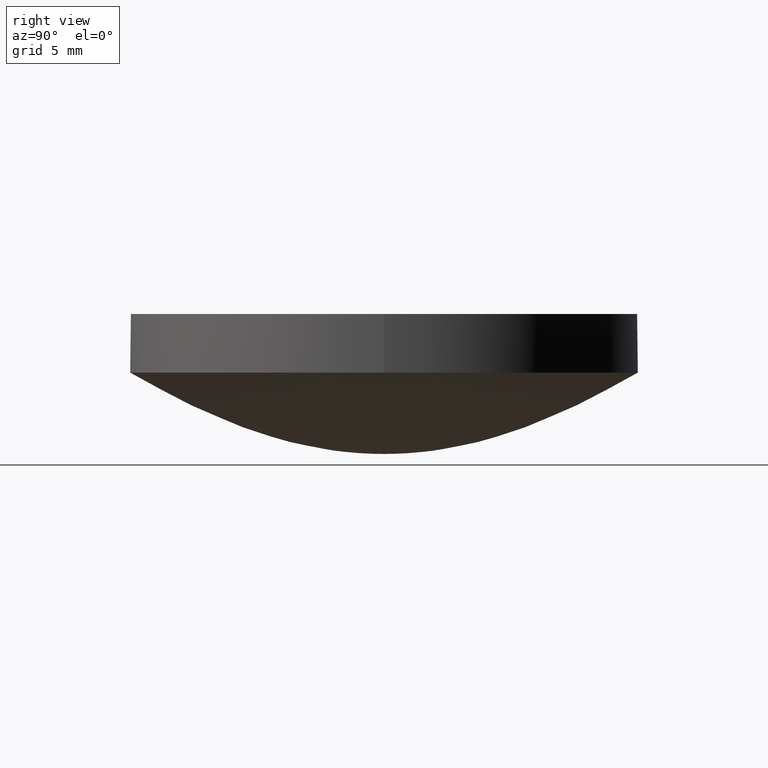
[diagram: clean part render]
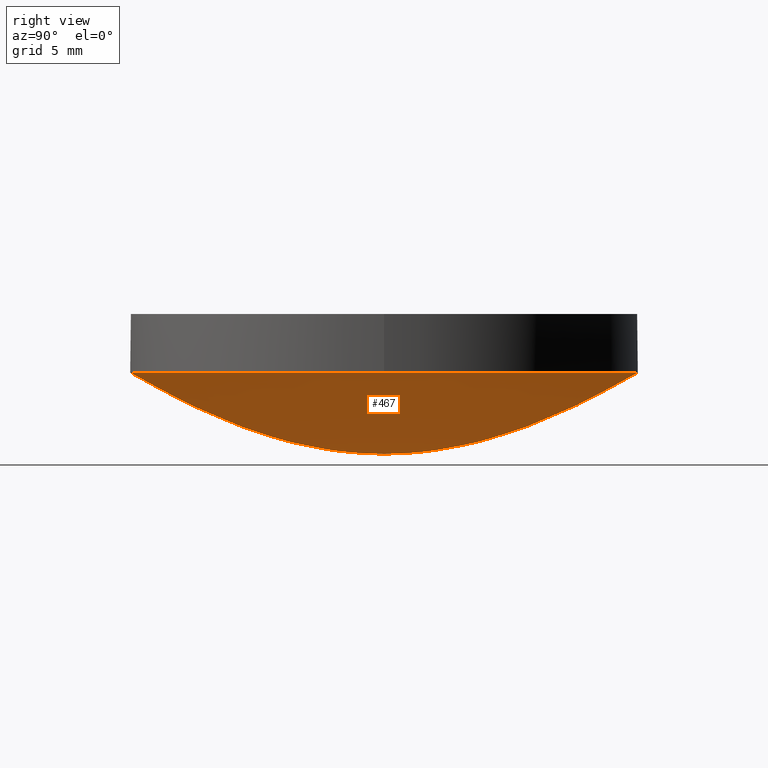
[diagram: same view with one face highlighted and labeled with its STEP entity id]
A machine part, right view. The second image highlights one B-rep face of the part: STEP entity #467.
In plain terms, the highlighted face is a freeform B-spline surface patch.
Its self-contained STEP definition (entity closure, byte-faithful):
#3 = CARTESIAN_POINT ( 'NONE',  ( 0.000000000000000000, 3.533405957217320648, 0.3344205416368840611 ) ) ;
#4 = CARTESIAN_POINT ( 'NONE',  ( 0.000000000000000000, 11.12882161848590101, 3.181104374964820014 ) ) ;
#6 = CARTESIAN_POINT ( 'NONE',  ( -12.00479254064729950, 12.00479254064729950, 3.667064022752589914 ) ) ;
#8 = CARTESIAN_POINT ( 'NONE',  ( -9.181737509768350236, 5.622192725974499850E-16, 2.214785189956430145 ) ) ;
#17 = CARTESIAN_POINT ( 'NONE',  ( -1.191719837553290114E-16, -0.9731130954516921117, 0.01543048580902020225 ) ) ;
#21 = VERTEX_POINT ( 'NONE', #272 ) ;
#25 = CARTESIAN_POINT ( 'NONE',  ( 6.711633172175790030, -1.232907012203440065E-15, 1.203886913266370096 ) ) ;
#28 = CARTESIAN_POINT ( 'NONE',  ( -1.555301434917141588E-15, -12.70000000000000462, 4.070440747888570243 ) ) ;
#29 = CARTESIAN_POINT ( 'NONE',  ( -8.219380081356279919E-16, -6.711633172175790030, 1.203886913266370096 ) ) ;
#30 = CARTESIAN_POINT ( 'NONE',  ( 9.886807867845659459, 9.886807867845650577, 2.551412349714330396 ) ) ;
#33 = CARTESIAN_POINT ( 'NONE',  ( 0.000000000000000000, 6.006055148341420846, 0.9667882177834620228 ) ) ;
#34 = CARTESIAN_POINT ( 'NONE',  ( 0.000000000000000000, 0.000000000000000000, 0.000000000000000000 ) ) ;
#36 = CARTESIAN_POINT ( 'NONE',  ( 0.000000000000000000, 3.533405957217320648, 0.3344205416368840611 ) ) ;
#37 = CARTESIAN_POINT ( 'NONE',  ( 0.000000000000000000, 1.855821823687519911, 0.08601257208149051814 ) ) ;
#38 = CARTESIAN_POINT ( 'NONE',  ( -1.191719837553290114E-16, -0.9731130954516921117, 0.01543048580902020225 ) ) ;
#39 = CARTESIAN_POINT ( 'NONE',  ( -6.711633172175790030, 4.109690040678139960E-16, 1.203886913266370096 ) ) ;
#40 = CARTESIAN_POINT ( 'NONE',  ( 11.12882161848590101, -2.044331366004090146E-15, 3.181104374964820014 ) ) ;
#43 = CARTESIAN_POINT ( 'NONE',  ( -11.12882161848589924, -11.12882161848589924, 3.181104374964820014 ) ) ;
#44 = CARTESIAN_POINT ( 'NONE',  ( -2.272726256166720090E-16, -1.855821823687519911, 0.08601257208149051814 ) ) ;
#46 = CARTESIAN_POINT ( 'NONE',  ( -1.124438545194899970E-15, -9.181737509768350236, 2.214785189956430145 ) ) ;
#51 = CARTESIAN_POINT ( 'NONE',  ( -0.2648328616955860082, 1.621633581922660085E-17, 0.000000000000000000 ) ) ;
#52 = CARTESIAN_POINT ( 'NONE',  ( 0.000000000000000000, 0.000000000000000000, 0.000000000000000000 ) ) ;
#53 = ORIENTED_EDGE ( 'NONE', *, *, #519, .T. ) ;
#60 = CARTESIAN_POINT ( 'NONE',  ( -0.2648328616955859527, -0.2648328616955859527, 0.000000000000000000 ) ) ;
#64 = B_SPLINE_CURVE_WITH_KNOTS ( 'NONE', 3,
 ( #536, #314, #486, #230, #151, #444, #68, #108, #311, #414, #241, #361, #451, #441, #38, #490, #112 ),
 .UNSPECIFIED., .F., .F.,
 ( 4, 1, 1, 1, 1, 1, 1, 1, 1, 1, 1, 1, 1, 1, 4 ),
 ( 0.000000000000000000, 0.1786505433435620072, 0.2225930362310299948, 0.3094249444054230080, 0.3523143596923489773, 0.4370447528922249969, 0.4788857308051759909, 0.5616114302726280538, 0.6024961518271300109, 0.6834766971770069865, 0.7235725209723830043, 0.8032027717589680371, 0.8427371987501770523, 0.9411358128706930337, 1.000000000000000000 ),
 .UNSPECIFIED. ) ;
#68 = CARTESIAN_POINT ( 'NONE',  ( -9.300336711742419180E-16, -7.594301245238770370, 1.533470957631930087 ) ) ;
#69 = CARTESIAN_POINT ( 'NONE',  ( 0.000000000000000000, 4.417048690703129665, 0.5241299113884619887 ) ) ;
#72 = CARTESIAN_POINT ( 'NONE',  ( -7.594301245238770370, 4.650168355871209590E-16, 1.533470957631930087 ) ) ;
#77 = CARTESIAN_POINT ( 'NONE',  ( 4.417048690703129665, -8.113986811121390347E-16, 0.5241299113884619887 ) ) ;
#78 = CARTESIAN_POINT ( 'NONE',  ( -11.12882161848590101, 6.814437886680300486E-16, 3.181104374964820014 ) ) ;
#79 = CARTESIAN_POINT ( 'NONE',  ( 1.734723475976807094E-15, -1.345898117247522881E-15, 4.070440747888570243 ) ) ;
#80 = CARTESIAN_POINT ( 'NONE',  ( -4.327174295594380739E-16, -3.533405957217320648, 0.3344205416368840611 ) ) ;
#81 = CARTESIAN_POINT ( 'NONE',  ( 0.000000000000000000, 9.181737509768350236, 2.214785189956430145 ) ) ;
#83 = CARTESIAN_POINT ( 'NONE',  ( 0.000000000000000000, 11.12882161848590101, 3.181104374964820014 ) ) ;
#86 = CARTESIAN_POINT ( 'NONE',  ( -1.210784760914209971E-15, -9.886807867845659459, 2.551412349714329952 ) ) ;
#88 = CARTESIAN_POINT ( 'NONE',  ( 1.855821823687519911, 1.855821823687519911, 0.08601257208149050426 ) ) ;
#91 = CARTESIAN_POINT ( 'NONE',  ( 0.000000000000000000, 0.000000000000000000, 0.000000000000000000 ) ) ;
#92 = CARTESIAN_POINT ( 'NONE',  ( 2.827385974584470052, -2.827385974584470052, 0.2123206717078350014 ) ) ;
#94 = VERTEX_POINT ( 'NONE', #28 ) ;
#96 = CARTESIAN_POINT ( 'NONE',  ( 0.000000000000000000, 0.000000000000000000, 0.000000000000000000 ) ) ;
#101 = CARTESIAN_POINT ( 'NONE',  ( -0.9731130954516921117, 5.958599187766440708E-17, 0.01543048580902020225 ) ) ;
#102 = CARTESIAN_POINT ( 'NONE',  ( 0.000000000000000000, 0.000000000000000000, 0.000000000000000000 ) ) ;
#108 = CARTESIAN_POINT ( 'NONE',  ( -8.219380081356279919E-16, -6.711633172175790030, 1.203886913266370096 ) ) ;
#109 = CARTESIAN_POINT ( 'NONE',  ( -6.273697908756820634E-16, -5.122863108877440119, 0.7050934592128860201 ) ) ;
#111 = CARTESIAN_POINT ( 'NONE',  ( 0.9731130954516920006, -0.9731130954516928888, 0.01543048580902020052 ) ) ;
#112 = CARTESIAN_POINT ( 'NONE',  ( 0.000000000000000000, 0.000000000000000000, 0.000000000000000000 ) ) ;
#113 = EDGE_CURVE ( 'NONE', #524, #21, #305, .T. ) ;
#114 = CARTESIAN_POINT ( 'NONE',  ( 0.000000000000000000, 8.299626648234200488, 1.822880464037990089 ) ) ;
#115 = CARTESIAN_POINT ( 'NONE',  ( -0.9731130954516920006, -0.9731130954516920006, 0.01543048580902020052 ) ) ;
#116 = CARTESIAN_POINT ( 'NONE',  ( 0.000000000000000000, 12.00479254064729950, 3.667064022752589914 ) ) ;
#118 = CARTESIAN_POINT ( 'NONE',  ( -4.417048690703129665, -4.417048690703129665, 0.5241299113884619887 ) ) ;
#119 = CARTESIAN_POINT ( 'NONE',  ( 12.00479254064729950, 12.00479254064729950, 3.667064022752589914 ) ) ;
#124 = CARTESIAN_POINT ( 'NONE',  ( 6.711633172175790030, -6.711633172175790030, 1.203886913266370096 ) ) ;
#125 = CARTESIAN_POINT ( 'NONE',  ( 12.69999999999999929, -2.332952152375710015E-15, 4.070440747888570243 ) ) ;
#127 = CARTESIAN_POINT ( 'NONE',  ( 6.711633172175790030, 6.711633172175790030, 1.203886913266370096 ) ) ;
#128 = CARTESIAN_POINT ( 'NONE',  ( -9.886807867845659459, 9.886807867845659459, 2.551412349714330396 ) ) ;
#131 = CARTESIAN_POINT ( 'NONE',  ( -1.855821823687519911, -1.855821823687519911, 0.08601257208149050426 ) ) ;
#135 = CARTESIAN_POINT ( 'NONE',  ( 1.734723475976807094E-15, -1.345898117247522881E-15, 4.070440747888570243 ) ) ;
#137 = CARTESIAN_POINT ( 'NONE',  ( -3.851859888774471706E-31, 12.70000000000000284, 4.070440747888570243 ) ) ;
#138 = CARTESIAN_POINT ( 'NONE',  ( 0.000000000000000000, 0.2648328616955860082, 0.000000000000000000 ) ) ;
#141 = ORIENTED_EDGE ( 'NONE', *, *, #331, .F. ) ;
#144 = CARTESIAN_POINT ( 'NONE',  ( 0.000000000000000000, 0.000000000000000000, 0.000000000000000000 ) ) ;
#151 = CARTESIAN_POINT ( 'NONE',  ( -1.124438545194899970E-15, -9.181737509768350236, 2.214785189956430145 ) ) ;
#152 = CARTESIAN_POINT ( 'NONE',  ( -5.122863108877440119, -5.122863108877440119, 0.7050934592128860201 ) ) ;
#154 = AXIS2_PLACEMENT_3D ( 'NONE', #135, #341, #516 ) ;
#157 = CARTESIAN_POINT ( 'NONE',  ( 0.000000000000000000, 8.299626648234200488, 1.822880464037990089 ) ) ;
#158 = CARTESIAN_POINT ( 'NONE',  ( -12.69999999999999929, 12.69999999999999929, 4.070440747888570243 ) ) ;
#160 = CARTESIAN_POINT ( 'NONE',  ( 8.299626648234200488, 8.299626648234200488, 1.822880464037990311 ) ) ;
#164 = CARTESIAN_POINT ( 'NONE',  ( 8.299626648234200488, -1.524616681331709934E-15, 1.822880464037990089 ) ) ;
#166 = CARTESIAN_POINT ( 'NONE',  ( 7.594301245238770370, 7.594301245238770370, 1.533470957631930309 ) ) ;
#167 = CARTESIAN_POINT ( 'NONE',  ( -11.12882161848589924, 11.12882161848589924, 3.181104374964820014 ) ) ;
#168 = CARTESIAN_POINT ( 'NONE',  ( 0.9731130954516921117, -1.787579756329929994E-16, 0.01543048580902020225 ) ) ;
#170 = CARTESIAN_POINT ( 'NONE',  ( 0.000000000000000000, 3.533405957217320648, 0.3344205416368840611 ) ) ;
#172 = EDGE_CURVE ( 'NONE', #94, #436, #64, .T. ) ;
#180 = CARTESIAN_POINT ( 'NONE',  ( -2.827385974584470052, -2.827385974584470052, 0.2123206717078350014 ) ) ;
#181 = CARTESIAN_POINT ( 'NONE',  ( 0.000000000000000000, 0.9731130954516921117, 0.01543048580902020225 ) ) ;
#183 = CARTESIAN_POINT ( 'NONE',  ( 0.2648328616955859527, -0.2648328616955859527, 0.000000000000000000 ) ) ;
#189 = CARTESIAN_POINT ( 'NONE',  ( 0.000000000000000000, 6.006055148341420846, 0.9667882177834620228 ) ) ;
#193 = CARTESIAN_POINT ( 'NONE',  ( -7.355296212918801441E-16, -6.006055148341420846, 0.9667882177834620228 ) ) ;
#194 = CARTESIAN_POINT ( 'NONE',  ( 12.00479254064729950, -12.00479254064729950, 3.667064022752589914 ) ) ;
#197 = CARTESIAN_POINT ( 'NONE',  ( -8.299626648234200488, 5.082055604439041003E-16, 1.822880464037990089 ) ) ;
#198 = CARTESIAN_POINT ( 'NONE',  ( 0.000000000000000000, 9.886807867845659459, 2.551412349714329952 ) ) ;
#201 = CARTESIAN_POINT ( 'NONE',  ( -6.006055148341419958, 6.006055148341419958, 0.9667882177834622448 ) ) ;
#202 = CARTESIAN_POINT ( 'NONE',  ( 0.000000000000000000, 0.9731130954516921117, 0.01543048580902020225 ) ) ;
#204 = CARTESIAN_POINT ( 'NONE',  ( 3.533405957217320648, -6.490761443391570122E-16, 0.3344205416368840611 ) ) ;
#205 = CARTESIAN_POINT ( 'NONE',  ( 0.000000000000000000, 0.000000000000000000, 0.000000000000000000 ) ) ;
#208 = CARTESIAN_POINT ( 'NONE',  ( 0.000000000000000000, 6.711633172175790030, 1.203886913266370096 ) ) ;
#210 = CARTESIAN_POINT ( 'NONE',  ( 9.181737509768350236, -9.181737509768350236, 2.214785189956430145 ) ) ;
#219 = CARTESIAN_POINT ( 'NONE',  ( 0.000000000000000000, 1.855821823687519911, 0.08601257208149051814 ) ) ;
#222 = CARTESIAN_POINT ( 'NONE',  ( 0.000000000000000000, 0.9731130954516921117, 0.01543048580902020225 ) ) ;
#230 = CARTESIAN_POINT ( 'NONE',  ( -1.210784760914209971E-15, -9.886807867845659459, 2.551412349714329952 ) ) ;
#231 = CARTESIAN_POINT ( 'NONE',  ( 6.006055148341420846, -1.103294431937820068E-15, 0.9667882177834620228 ) ) ;
#235 = CARTESIAN_POINT ( 'NONE',  ( 0.000000000000000000, 9.181737509768350236, 2.214785189956430145 ) ) ;
#238 = CARTESIAN_POINT ( 'NONE',  ( -5.122863108877440119, 3.136848954378410317E-16, 0.7050934592128860201 ) ) ;
#239 = CARTESIAN_POINT ( 'NONE',  ( 0.000000000000000000, 7.594301245238770370, 1.533470957631930087 ) ) ;
#241 = CARTESIAN_POINT ( 'NONE',  ( -5.409324540747589949E-16, -4.417048690703129665, 0.5241299113884619887 ) ) ;
#243 = CARTESIAN_POINT ( 'NONE',  ( 4.417048690703129665, 4.417048690703129665, 0.5241299113884619887 ) ) ;
#246 = CARTESIAN_POINT ( 'NONE',  ( -6.006055148341419958, -6.006055148341419958, 0.9667882177834622448 ) ) ;
#247 = CARTESIAN_POINT ( 'NONE',  ( 11.12882161848589924, -11.12882161848589924, 3.181104374964820014 ) ) ;
#249 = CARTESIAN_POINT ( 'NONE',  ( 0.000000000000000000, 12.69999999999999929, 4.070440747888570243 ) ) ;
#252 = CARTESIAN_POINT ( 'NONE',  ( -9.181737509768350236, -9.181737509768350236, 2.214785189956430145 ) ) ;
#256 = CARTESIAN_POINT ( 'NONE',  ( 0.000000000000000000, 0.000000000000000000, 0.000000000000000000 ) ) ;
#265 = CARTESIAN_POINT ( 'NONE',  ( -0.2648328616955859527, 0.2648328616955859527, 0.000000000000000000 ) ) ;
#272 = CARTESIAN_POINT ( 'NONE',  ( 12.70000000000000462, -8.881784197001248379E-16, 4.070440747888570243 ) ) ;
#273 = CARTESIAN_POINT ( 'NONE',  ( 5.122863108877440119, -9.410546863135229472E-16, 0.7050934592128860201 ) ) ;
#276 = CARTESIAN_POINT ( 'NONE',  ( -5.122863108877440119, 5.122863108877440119, 0.7050934592128860201 ) ) ;
#277 = CARTESIAN_POINT ( 'NONE',  ( -9.181737509768350236, 9.181737509768350236, 2.214785189956430145 ) ) ;
#280 = CARTESIAN_POINT ( 'NONE',  ( -5.409324540747589949E-16, -4.417048690703129665, 0.5241299113884619887 ) ) ;
#282 = CARTESIAN_POINT ( 'NONE',  ( 0.000000000000000000, 11.12882161848590101, 3.181104374964820014 ) ) ;
#283 = CARTESIAN_POINT ( 'NONE',  ( 0.9731130954516928888, 0.9731130954516920006, 0.01543048580902020052 ) ) ;
#286 = CARTESIAN_POINT ( 'NONE',  ( 6.006055148341419958, 6.006055148341419958, 0.9667882177834622448 ) ) ;
#287 = CARTESIAN_POINT ( 'NONE',  ( -1.362887577336060097E-15, -11.12882161848590101, 3.181104374964820014 ) ) ;
#289 = CARTESIAN_POINT ( 'NONE',  ( -9.300336711742419180E-16, -7.594301245238770370, 1.533470957631930087 ) ) ;
#290 = CARTESIAN_POINT ( 'NONE',  ( 0.000000000000000000, 9.886807867845659459, 2.551412349714329952 ) ) ;
#293 = CARTESIAN_POINT ( 'NONE',  ( 12.69999999999999929, 12.69999999999999929, 4.070440747888570243 ) ) ;
#295 =( BOUNDED_SURFACE ( )  B_SPLINE_SURFACE ( 3, 2, ( 
 ( #249, #158, #458, #363, #503, #500, #125, #293, #454 ),
 ( #449, #6, #464, #419, #325, #194, #495, #119, #332 ),
 ( #282, #167, #78, #43, #287, #247, #40, #373, #4 ),
 ( #290, #128, #375, #360, #86, #407, #538, #30, #321 ),
 ( #492, #277, #8, #252, #46, #210, #422, #377, #235 ),
 ( #114, #330, #197, #320, #405, #537, #164, #160, #157 ),
 ( #359, #502, #72, #362, #289, #401, #448, #166, #533 ),
 ( #461, #315, #39, #487, #29, #124, #25, #127, #499 ),
 ( #33, #201, #355, #246, #193, #540, #231, #286, #189 ),
 ( #457, #276, #238, #152, #109, #491, #273, #409, #445 ),
 ( #69, #324, #494, #118, #280, #452, #77, #243, #412 ),
 ( #36, #365, #544, #327, #80, #415, #204, #370, #3 ),
 ( #473, #433, #383, #180, #426, #92, #343, #511, #381 ),
 ( #219, #420, #367, #131, #44, #465, #468, #88, #417 ),
 ( #222, #398, #101, #115, #17, #111, #168, #283, #181 ),
 ( #345, #265, #51, #60, #348, #183, #302, #298, #138 ),
 ( #144, #102, #52, #518, #339, #91, #344, #256, #96 ) ),
 .UNSPECIFIED., .F., .T., .F. ) 
 B_SPLINE_SURFACE_WITH_KNOTS ( ( 4, 1, 1, 1, 1, 1, 1, 1, 1, 1, 1, 1, 1, 1, 4 ),
 ( 3, 2, 2, 2, 3 ),
 ( 0.000000000000000000, 0.1786505433435620072, 0.2225930362310299948, 0.3094249444054230080, 0.3523143596923489773, 0.4370447528922249969, 0.4788857308051759909, 0.5616114302726280538, 0.6024961518271300109, 0.6834766971770069865, 0.7235725209723830043, 0.8032027717589680371, 0.8427371987501770523, 0.9411358128706930337, 1.000000000000000000 ),
 ( 0.000000000000000000, 90.00000000000000000, 180.0000000000000000, 270.0000000000000000, 360.0000000000000000 ),
 .UNSPECIFIED. ) 
 GEOMETRIC_REPRESENTATION_ITEM ( )  RATIONAL_B_SPLINE_SURFACE ( (
 ( 1.000000000000000000, 0.7071067811865480168, 1.000000000000000000, 0.7071067811865480168, 1.000000000000000000, 0.7071067811865480168, 1.000000000000000000, 0.7071067811865480168, 1.000000000000000000),
 ( 1.000000000000000000, 0.7071067811865480168, 1.000000000000000000, 0.7071067811865480168, 1.000000000000000000, 0.7071067811865480168, 1.000000000000000000, 0.7071067811865480168, 1.000000000000000000),
 ( 1.000000000000000000, 0.7071067811865480168, 1.000000000000000000, 0.7071067811865480168, 1.000000000000000000, 0.7071067811865480168, 1.000000000000000000, 0.7071067811865480168, 1.000000000000000000),
 ( 1.000000000000000000, 0.7071067811865480168, 1.000000000000000000, 0.7071067811865480168, 1.000000000000000000, 0.7071067811865480168, 1.000000000000000000, 0.7071067811865480168, 1.000000000000000000),
 ( 1.000000000000000000, 0.7071067811865480168, 1.000000000000000000, 0.7071067811865480168, 1.000000000000000000, 0.7071067811865480168, 1.000000000000000000, 0.7071067811865480168, 1.000000000000000000),
 ( 1.000000000000000000, 0.7071067811865480168, 1.000000000000000000, 0.7071067811865480168, 1.000000000000000000, 0.7071067811865480168, 1.000000000000000000, 0.7071067811865480168, 1.000000000000000000),
 ( 1.000000000000000000, 0.7071067811865480168, 1.000000000000000000, 0.7071067811865480168, 1.000000000000000000, 0.7071067811865480168, 1.000000000000000000, 0.7071067811865480168, 1.000000000000000000),
 ( 1.000000000000000000, 0.7071067811865480168, 1.000000000000000000, 0.7071067811865480168, 1.000000000000000000, 0.7071067811865480168, 1.000000000000000000, 0.7071067811865480168, 1.000000000000000000),
 ( 1.000000000000000000, 0.7071067811865480168, 1.000000000000000000, 0.7071067811865480168, 1.000000000000000000, 0.7071067811865480168, 1.000000000000000000, 0.7071067811865480168, 1.000000000000000000),
 ( 1.000000000000000000, 0.7071067811865480168, 1.000000000000000000, 0.7071067811865480168, 1.000000000000000000, 0.7071067811865480168, 1.000000000000000000, 0.7071067811865480168, 1.000000000000000000),
 ( 1.000000000000000000, 0.7071067811865480168, 1.000000000000000000, 0.7071067811865480168, 1.000000000000000000, 0.7071067811865480168, 1.000000000000000000, 0.7071067811865480168, 1.000000000000000000),
 ( 1.000000000000000000, 0.7071067811865480168, 1.000000000000000000, 0.7071067811865480168, 1.000000000000000000, 0.7071067811865480168, 1.000000000000000000, 0.7071067811865480168, 1.000000000000000000),
 ( 1.000000000000000000, 0.7071067811865480168, 1.000000000000000000, 0.7071067811865480168, 1.000000000000000000, 0.7071067811865480168, 1.000000000000000000, 0.7071067811865480168, 1.000000000000000000),
 ( 1.000000000000000000, 0.7071067811865480168, 1.000000000000000000, 0.7071067811865480168, 1.000000000000000000, 0.7071067811865480168, 1.000000000000000000, 0.7071067811865480168, 1.000000000000000000),
 ( 1.000000000000000000, 0.7071067811865480168, 1.000000000000000000, 0.7071067811865480168, 1.000000000000000000, 0.7071067811865480168, 1.000000000000000000, 0.7071067811865480168, 1.000000000000000000),
 ( 1.000000000000000000, 0.7071067811865480168, 1.000000000000000000, 0.7071067811865480168, 1.000000000000000000, 0.7071067811865480168, 1.000000000000000000, 0.7071067811865480168, 1.000000000000000000),
 ( 1.000000000000000000, 0.7071067811865480168, 1.000000000000000000, 0.7071067811865480168, 1.000000000000000000, 0.7071067811865480168, 1.000000000000000000, 0.7071067811865480168, 1.000000000000000000) ) ) 
 REPRESENTATION_ITEM ( '' )  SURFACE ( )  );
#298 = CARTESIAN_POINT ( 'NONE',  ( 0.2648328616955859527, 0.2648328616955859527, 0.000000000000000000 ) ) ;
#302 = CARTESIAN_POINT ( 'NONE',  ( 0.2648328616955860082, -4.864900745767989807E-17, 0.000000000000000000 ) ) ;
#303 = ORIENTED_EDGE ( 'NONE', *, *, #172, .T. ) ;
#305 = CIRCLE ( 'NONE', #485, 12.70000000000000284 ) ;
#311 = CARTESIAN_POINT ( 'NONE',  ( -7.355296212918801441E-16, -6.006055148341420846, 0.9667882177834620228 ) ) ;
#314 = CARTESIAN_POINT ( 'NONE',  ( -1.470163075933170040E-15, -12.00479254064729950, 3.667064022752589914 ) ) ;
#315 = CARTESIAN_POINT ( 'NONE',  ( -6.711633172175790030, 6.711633172175790030, 1.203886913266370096 ) ) ;
#319 = DIRECTION ( 'NONE',  ( -0.000000000000000000, -0.000000000000000000, -1.000000000000000000 ) ) ;
#320 = CARTESIAN_POINT ( 'NONE',  ( -8.299626648234200488, -8.299626648234200488, 1.822880464037990311 ) ) ;
#321 = CARTESIAN_POINT ( 'NONE',  ( 0.000000000000000000, 9.886807867845659459, 2.551412349714329952 ) ) ;
#324 = CARTESIAN_POINT ( 'NONE',  ( -4.417048690703129665, 4.417048690703129665, 0.5241299113884619887 ) ) ;
#325 = CARTESIAN_POINT ( 'NONE',  ( -1.470163075933170040E-15, -12.00479254064729950, 3.667064022752589914 ) ) ;
#327 = CARTESIAN_POINT ( 'NONE',  ( -3.533405957217320204, -3.533405957217320204, 0.3344205416368839501 ) ) ;
#328 = CARTESIAN_POINT ( 'NONE',  ( 0.000000000000000000, 0.2648328616955860082, 0.000000000000000000 ) ) ;
#330 = CARTESIAN_POINT ( 'NONE',  ( -8.299626648234200488, 8.299626648234200488, 1.822880464037990311 ) ) ;
#331 = EDGE_CURVE ( 'NONE', #524, #436, #384, .T. ) ;
#332 = CARTESIAN_POINT ( 'NONE',  ( 0.000000000000000000, 12.00479254064729950, 3.667064022752589914 ) ) ;
#334 = CARTESIAN_POINT ( 'NONE',  ( 0.000000000000000000, 6.006055148341420846, 0.9667882177834620228 ) ) ;
#339 = CARTESIAN_POINT ( 'NONE',  ( 0.000000000000000000, 0.000000000000000000, 0.000000000000000000 ) ) ;
#341 = DIRECTION ( 'NONE',  ( -0.000000000000000000, -0.000000000000000000, -1.000000000000000000 ) ) ;
#343 = CARTESIAN_POINT ( 'NONE',  ( 2.827385974584470052, -5.193823775593480142E-16, 0.2123206717078350014 ) ) ;
#344 = CARTESIAN_POINT ( 'NONE',  ( 0.000000000000000000, 0.000000000000000000, 0.000000000000000000 ) ) ;
#345 = CARTESIAN_POINT ( 'NONE',  ( 0.000000000000000000, 0.2648328616955860082, 0.000000000000000000 ) ) ;
#348 = CARTESIAN_POINT ( 'NONE',  ( -3.243267163845330030E-17, -0.2648328616955860082, 0.000000000000000000 ) ) ;
#355 = CARTESIAN_POINT ( 'NONE',  ( -6.006055148341420846, 3.677648106459400720E-16, 0.9667882177834620228 ) ) ;
#359 = CARTESIAN_POINT ( 'NONE',  ( 0.000000000000000000, 7.594301245238770370, 1.533470957631930087 ) ) ;
#360 = CARTESIAN_POINT ( 'NONE',  ( -9.886807867845659459, -9.886807867845650577, 2.551412349714330396 ) ) ;
#361 = CARTESIAN_POINT ( 'NONE',  ( -4.327174295594380739E-16, -3.533405957217320648, 0.3344205416368840611 ) ) ;
#362 = CARTESIAN_POINT ( 'NONE',  ( -7.594301245238770370, -7.594301245238770370, 1.533470957631930309 ) ) ;
#363 = CARTESIAN_POINT ( 'NONE',  ( -12.69999999999999929, -12.69999999999999929, 4.070440747888570243 ) ) ;
#365 = CARTESIAN_POINT ( 'NONE',  ( -3.533405957217320204, 3.533405957217320204, 0.3344205416368839501 ) ) ;
#366 = CARTESIAN_POINT ( 'NONE',  ( 0.000000000000000000, 5.122863108877440119, 0.7050934592128860201 ) ) ;
#367 = CARTESIAN_POINT ( 'NONE',  ( -1.855821823687519911, 1.136363128083360045E-16, 0.08601257208149051814 ) ) ;
#370 = CARTESIAN_POINT ( 'NONE',  ( 3.533405957217320204, 3.533405957217320204, 0.3344205416368839501 ) ) ;
#373 = CARTESIAN_POINT ( 'NONE',  ( 11.12882161848589924, 11.12882161848589924, 3.181104374964820014 ) ) ;
#375 = CARTESIAN_POINT ( 'NONE',  ( -9.886807867845659459, 6.053923804571030135E-16, 2.551412349714329952 ) ) ;
#377 = CARTESIAN_POINT ( 'NONE',  ( 9.181737509768350236, 9.181737509768350236, 2.214785189956430145 ) ) ;
#381 = CARTESIAN_POINT ( 'NONE',  ( 0.000000000000000000, 2.827385974584470052, 0.2123206717078350014 ) ) ;
#383 = CARTESIAN_POINT ( 'NONE',  ( -2.827385974584470052, 1.731274591864490094E-16, 0.2123206717078350014 ) ) ;
#384 = B_SPLINE_CURVE_WITH_KNOTS ( 'NONE', 3,
 ( #416, #116, #83, #198, #81, #545, #239, #208, #334, #366, #410, #170, #413, #37, #202, #328, #34 ),
 .UNSPECIFIED., .F., .F.,
 ( 4, 1, 1, 1, 1, 1, 1, 1, 1, 1, 1, 1, 1, 1, 4 ),
 ( 0.000000000000000000, 0.1786505433435620072, 0.2225930362310299948, 0.3094249444054230080, 0.3523143596923489773, 0.4370447528922249969, 0.4788857308051759909, 0.5616114302726280538, 0.6024961518271300109, 0.6834766971770069865, 0.7235725209723830043, 0.8032027717589680371, 0.8427371987501770523, 0.9411358128706930337, 1.000000000000000000 ),
 .UNSPECIFIED. ) ;
#388 = CIRCLE ( 'NONE', #154, 12.70000000000000284 ) ;
#398 = CARTESIAN_POINT ( 'NONE',  ( -0.9731130954516920006, 0.9731130954516920006, 0.01543048580902020052 ) ) ;
#401 = CARTESIAN_POINT ( 'NONE',  ( 7.594301245238770370, -7.594301245238770370, 1.533470957631930309 ) ) ;
#404 = DIRECTION ( 'NONE',  ( -1.000000000000000000, 0.000000000000000000, 0.000000000000000000 ) ) ;
#405 = CARTESIAN_POINT ( 'NONE',  ( -1.016411120887809976E-15, -8.299626648234200488, 1.822880464037990089 ) ) ;
#407 = CARTESIAN_POINT ( 'NONE',  ( 9.886807867845650577, -9.886807867845659459, 2.551412349714330396 ) ) ;
#409 = CARTESIAN_POINT ( 'NONE',  ( 5.122863108877440119, 5.122863108877440119, 0.7050934592128860201 ) ) ;
#410 = CARTESIAN_POINT ( 'NONE',  ( 0.000000000000000000, 4.417048690703129665, 0.5241299113884619887 ) ) ;
#412 = CARTESIAN_POINT ( 'NONE',  ( 0.000000000000000000, 4.417048690703129665, 0.5241299113884619887 ) ) ;
#413 = CARTESIAN_POINT ( 'NONE',  ( 0.000000000000000000, 2.827385974584470052, 0.2123206717078350014 ) ) ;
#414 = CARTESIAN_POINT ( 'NONE',  ( -6.273697908756820634E-16, -5.122863108877440119, 0.7050934592128860201 ) ) ;
#415 = CARTESIAN_POINT ( 'NONE',  ( 3.533405957217320204, -3.533405957217320204, 0.3344205416368839501 ) ) ;
#416 = CARTESIAN_POINT ( 'NONE',  ( -3.851859888774471706E-31, 12.70000000000000284, 4.070440747888570243 ) ) ;
#417 = CARTESIAN_POINT ( 'NONE',  ( 0.000000000000000000, 1.855821823687519911, 0.08601257208149051814 ) ) ;
#419 = CARTESIAN_POINT ( 'NONE',  ( -12.00479254064729950, -12.00479254064729950, 3.667064022752589914 ) ) ;
#420 = CARTESIAN_POINT ( 'NONE',  ( -1.855821823687519911, 1.855821823687519911, 0.08601257208149050426 ) ) ;
#422 = CARTESIAN_POINT ( 'NONE',  ( 9.181737509768350236, -1.686657817792350152E-15, 2.214785189956430145 ) ) ;
#426 = CARTESIAN_POINT ( 'NONE',  ( -3.462549183728990048E-16, -2.827385974584470052, 0.2123206717078350014 ) ) ;
#433 = CARTESIAN_POINT ( 'NONE',  ( -2.827385974584470052, 2.827385974584470052, 0.2123206717078350014 ) ) ;
#435 = ORIENTED_EDGE ( 'NONE', *, *, #113, .T. ) ;
#436 = VERTEX_POINT ( 'NONE', #205 ) ;
#441 = CARTESIAN_POINT ( 'NONE',  ( -2.272726256166720090E-16, -1.855821823687519911, 0.08601257208149051814 ) ) ;
#444 = CARTESIAN_POINT ( 'NONE',  ( -1.016411120887809976E-15, -8.299626648234200488, 1.822880464037990089 ) ) ;
#445 = CARTESIAN_POINT ( 'NONE',  ( 0.000000000000000000, 5.122863108877440119, 0.7050934592128860201 ) ) ;
#448 = CARTESIAN_POINT ( 'NONE',  ( 7.594301245238770370, -1.395050506761360116E-15, 1.533470957631930087 ) ) ;
#449 = CARTESIAN_POINT ( 'NONE',  ( 0.000000000000000000, 12.00479254064729950, 3.667064022752589914 ) ) ;
#451 = CARTESIAN_POINT ( 'NONE',  ( -3.462549183728990048E-16, -2.827385974584470052, 0.2123206717078350014 ) ) ;
#452 = CARTESIAN_POINT ( 'NONE',  ( 4.417048690703129665, -4.417048690703129665, 0.5241299113884619887 ) ) ;
#454 = CARTESIAN_POINT ( 'NONE',  ( 0.000000000000000000, 12.69999999999999929, 4.070440747888570243 ) ) ;
#457 = CARTESIAN_POINT ( 'NONE',  ( 0.000000000000000000, 5.122863108877440119, 0.7050934592128860201 ) ) ;
#458 = CARTESIAN_POINT ( 'NONE',  ( -12.69999999999999929, 7.776507174585690191E-16, 4.070440747888570243 ) ) ;
#461 = CARTESIAN_POINT ( 'NONE',  ( 0.000000000000000000, 6.711633172175790030, 1.203886913266370096 ) ) ;
#464 = CARTESIAN_POINT ( 'NONE',  ( -12.00479254064729950, 7.350815379665869921E-16, 3.667064022752589914 ) ) ;
#465 = CARTESIAN_POINT ( 'NONE',  ( 1.855821823687519911, -1.855821823687519911, 0.08601257208149050426 ) ) ;
#467 = ADVANCED_FACE ( 'NONE', ( #505 ), #295, .T. ) ;
#468 = CARTESIAN_POINT ( 'NONE',  ( 1.855821823687519911, -3.409089384250079888E-16, 0.08601257208149051814 ) ) ;
#473 = CARTESIAN_POINT ( 'NONE',  ( 0.000000000000000000, 2.827385974584470052, 0.2123206717078350014 ) ) ;
#477 = EDGE_LOOP ( 'NONE', ( #53, #303, #141, #435 ) ) ;
#485 = AXIS2_PLACEMENT_3D ( 'NONE', #79, #319, #404 ) ;
#486 = CARTESIAN_POINT ( 'NONE',  ( -1.362887577336060097E-15, -11.12882161848590101, 3.181104374964820014 ) ) ;
#487 = CARTESIAN_POINT ( 'NONE',  ( -6.711633172175790030, -6.711633172175790030, 1.203886913266370096 ) ) ;
#490 = CARTESIAN_POINT ( 'NONE',  ( -3.243267163845330030E-17, -0.2648328616955860082, 0.000000000000000000 ) ) ;
#491 = CARTESIAN_POINT ( 'NONE',  ( 5.122863108877440119, -5.122863108877440119, 0.7050934592128860201 ) ) ;
#492 = CARTESIAN_POINT ( 'NONE',  ( 0.000000000000000000, 9.181737509768350236, 2.214785189956430145 ) ) ;
#494 = CARTESIAN_POINT ( 'NONE',  ( -4.417048690703129665, 2.704662270373799905E-16, 0.5241299113884619887 ) ) ;
#495 = CARTESIAN_POINT ( 'NONE',  ( 12.00479254064729950, -2.205244613899760188E-15, 3.667064022752589914 ) ) ;
#499 = CARTESIAN_POINT ( 'NONE',  ( 0.000000000000000000, 6.711633172175790030, 1.203886913266370096 ) ) ;
#500 = CARTESIAN_POINT ( 'NONE',  ( 12.69999999999999929, -12.69999999999999929, 4.070440747888570243 ) ) ;
#502 = CARTESIAN_POINT ( 'NONE',  ( -7.594301245238770370, 7.594301245238770370, 1.533470957631930309 ) ) ;
#503 = CARTESIAN_POINT ( 'NONE',  ( -1.555301434917140010E-15, -12.69999999999999929, 4.070440747888570243 ) ) ;
#505 = FACE_OUTER_BOUND ( 'NONE', #477, .T. ) ;
#511 = CARTESIAN_POINT ( 'NONE',  ( 2.827385974584470052, 2.827385974584470052, 0.2123206717078350014 ) ) ;
#516 = DIRECTION ( 'NONE',  ( -1.000000000000000000, 0.000000000000000000, 0.000000000000000000 ) ) ;
#518 = CARTESIAN_POINT ( 'NONE',  ( 0.000000000000000000, 0.000000000000000000, 0.000000000000000000 ) ) ;
#519 = EDGE_CURVE ( 'NONE', #21, #94, #388, .T. ) ;
#524 = VERTEX_POINT ( 'NONE', #137 ) ;
#533 = CARTESIAN_POINT ( 'NONE',  ( 0.000000000000000000, 7.594301245238770370, 1.533470957631930087 ) ) ;
#536 = CARTESIAN_POINT ( 'NONE',  ( -1.555301434917141588E-15, -12.70000000000000462, 4.070440747888570243 ) ) ;
#537 = CARTESIAN_POINT ( 'NONE',  ( 8.299626648234200488, -8.299626648234200488, 1.822880464037990311 ) ) ;
#538 = CARTESIAN_POINT ( 'NONE',  ( 9.886807867845659459, -1.816177141371310027E-15, 2.551412349714329952 ) ) ;
#540 = CARTESIAN_POINT ( 'NONE',  ( 6.006055148341419958, -6.006055148341419958, 0.9667882177834622448 ) ) ;
#544 = CARTESIAN_POINT ( 'NONE',  ( -3.533405957217320648, 2.163587147797190369E-16, 0.3344205416368840611 ) ) ;
#545 = CARTESIAN_POINT ( 'NONE',  ( 0.000000000000000000, 8.299626648234200488, 1.822880464037990089 ) ) ;